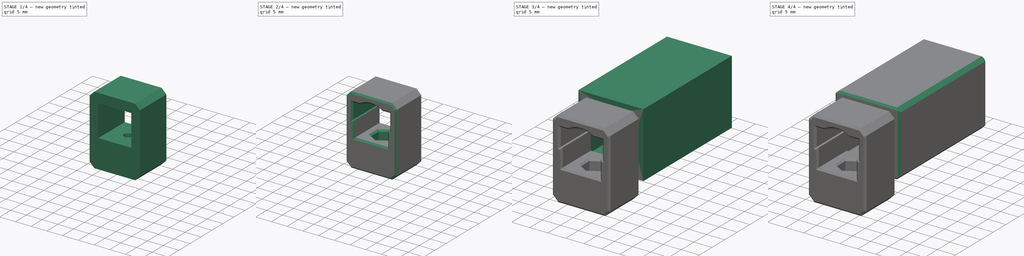
[diagram: build sequence overview — one tinted view per stage of 4, left to right]
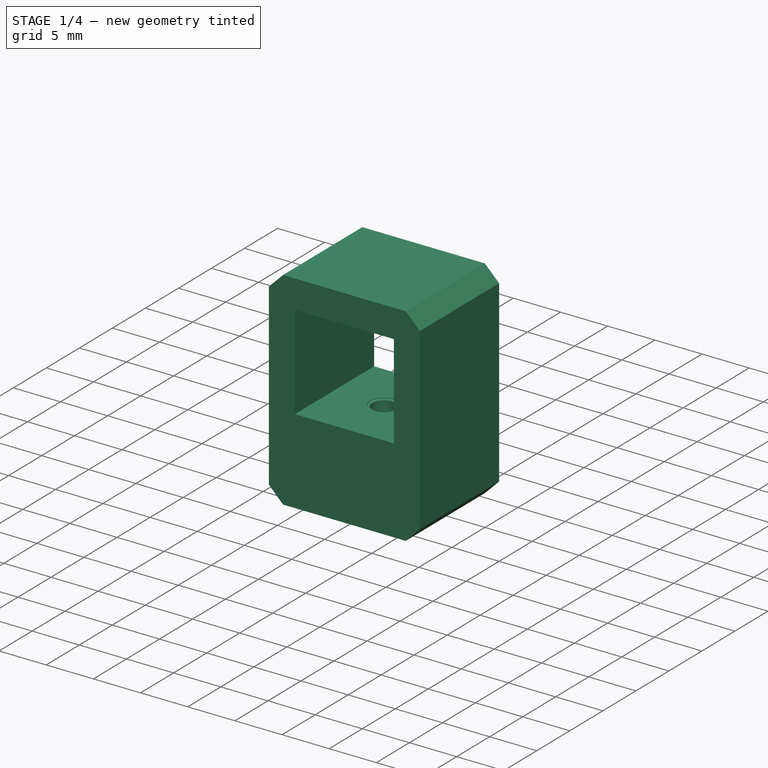
[diagram: stage 1 of 4 — iso view after this stage's code; geometry added in this stage tinted green]
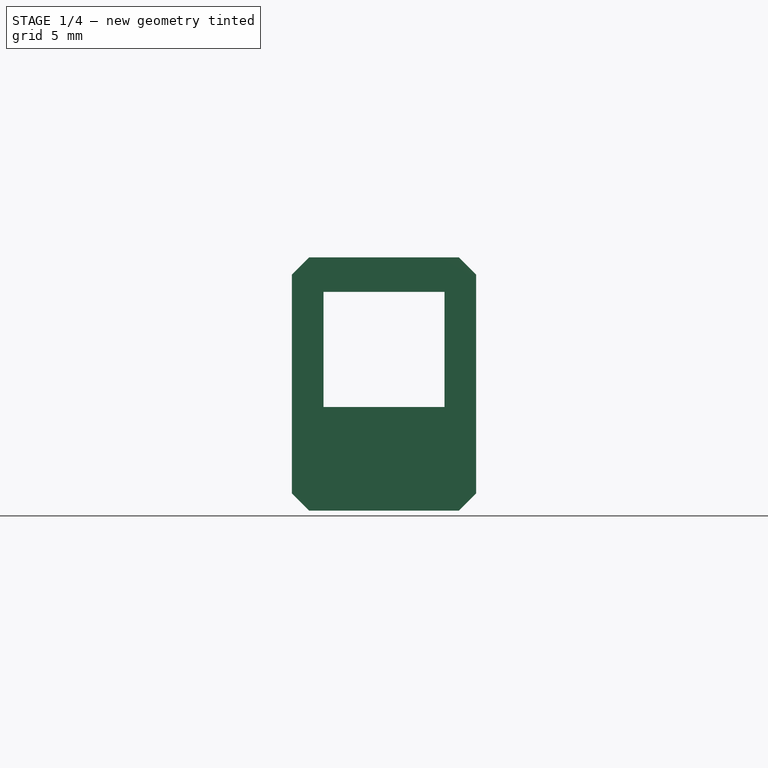
[diagram: stage 1 of 4 — front view after this stage's code; geometry added in this stage tinted green]
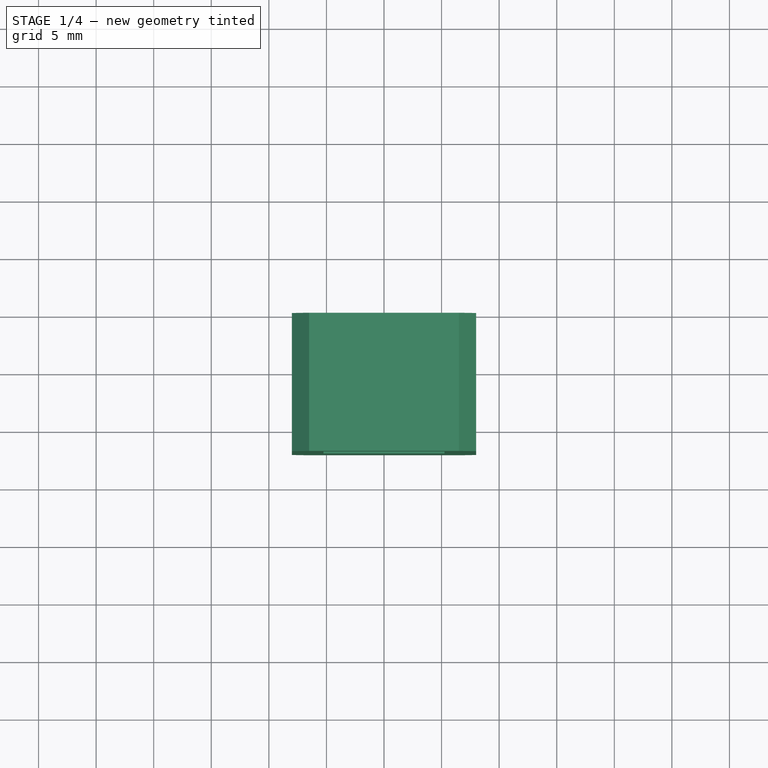
[diagram: stage 1 of 4 — top view after this stage's code; geometry added in this stage tinted green]
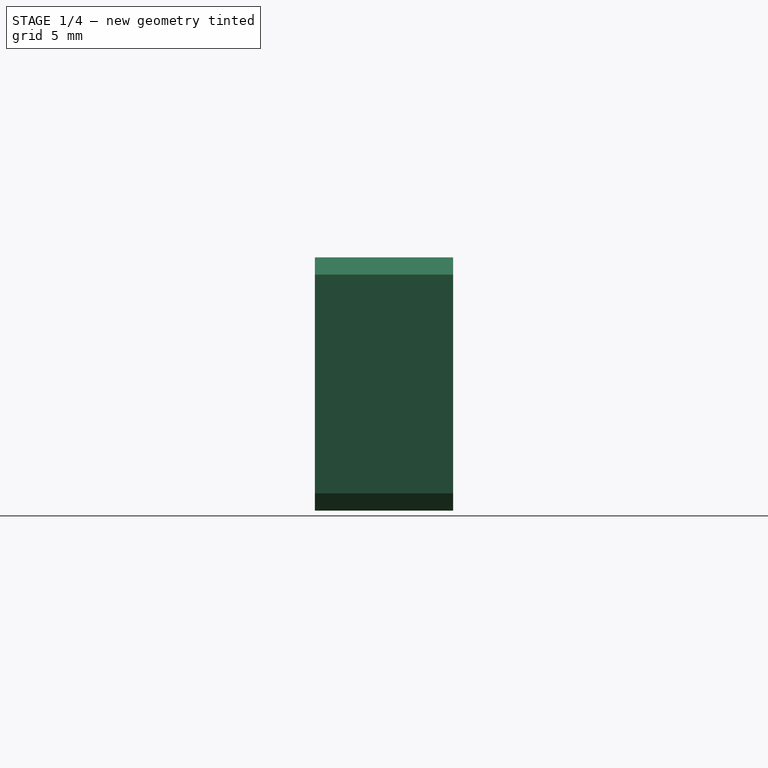
[diagram: stage 1 of 4 — right view after this stage's code; geometry added in this stage tinted green]
FCSTD DOCUMENT  (FreeCAD 1.0R39319 (Git))
Label: stopper
License: CERN Open Hardware Licence permissive
LicenseURL: https://cern-ohl.web.cern.ch/
objects: Sketcher::SketchObject×7, PartDesign::Pocket×4, PartDesign::Chamfer×4, PartDesign::Pad×3, PartDesign::Body×2, Part::FeaturePython×1, PartDesign::SubShapeBinder×1
note: 51 computed .brp shape members not serialized (recipe doc carries the construction recipe); baked Part::Feature solids carry a one-line shape summary decoded from their .brp

FEATURE [Sketcher::SketchObject] Sketch
  ArcFitTolerance = 1e-06
  AttachmentSupport = -> [XZ_Plane]
  FullyConstrained = true
  MakeInternals = false
  MapMode = 5
  Placement = pos=(0,0,0) rot=(1,0,0;1.5708rad)
  sketch-geometry (21):
    g0: LineSegment StartX=-5.25 StartY=-5 StartZ=0 EndX=5.25 EndY=-5 EndZ=0
    g1: LineSegment StartX=5.25 StartY=-5 StartZ=0 EndX=5.25 EndY=5 EndZ=0
    g2: LineSegment StartX=5.25 StartY=5 StartZ=0 EndX=-5.25 EndY=5 EndZ=0
    g3: LineSegment StartX=-5.25 StartY=5 StartZ=0 EndX=-5.25 EndY=-5 EndZ=0
    g4: GeomPoint [constr] X=0 Y=0 Z=0
    g5: LineSegment StartX=-8 StartY=6.5 StartZ=0 EndX=-8 EndY=-12.5 EndZ=0
    g6: LineSegment StartX=-6.5 StartY=-14 StartZ=0 EndX=6.5 EndY=-14 EndZ=0
    g7: LineSegment StartX=8 StartY=-12.5 StartZ=0 EndX=8 EndY=6.5 EndZ=0
    g8: LineSegment StartX=6.5 StartY=8 StartZ=0 EndX=-6.5 EndY=8 EndZ=0
    g9: ArcOfCircle [constr] CenterX=6.5 CenterY=6.5 CenterZ=0 NormalX=0 NormalY=0 NormalZ=1 AngleXU=0 Radius=1.5 StartAngle=1e-16 EndAngle=1.5708
    g10: GeomPoint [constr] X=8 Y=8 Z=0
    g11: ArcOfCircle [constr] CenterX=-6.5 CenterY=6.5 CenterZ=0 NormalX=0 NormalY=0 NormalZ=1 AngleXU=0 Radius=1.5 StartAngle=1.5708 EndAngle=3.14159
    g12: GeomPoint [constr] X=-8 Y=8 Z=0
    g13: ArcOfCircle [constr] CenterX=-6.5 CenterY=-12.5 CenterZ=0 NormalX=0 NormalY=0 NormalZ=1 AngleXU=0 Radius=1.5 StartAngle=3.14159 EndAngle=4.71239
    g14: GeomPoint [constr] X=-8 Y=-14 Z=0
    g15: ArcOfCircle [constr] CenterX=6.5 CenterY=-12.5 CenterZ=0 NormalX=0 NormalY=0 NormalZ=1 AngleXU=0 Radius=1.5 StartAngle=4.71239 EndAngle=6.28319
    g16: GeomPoint [constr] X=8 Y=-14 Z=0
    g17: LineSegment StartX=-6.5 StartY=8 StartZ=0 EndX=-8 EndY=6.5 EndZ=0
    g18: LineSegment StartX=6.5 StartY=8 StartZ=0 EndX=8 EndY=6.5 EndZ=0
    g19: LineSegment StartX=8 StartY=-12.5 StartZ=0 EndX=6.5 EndY=-14 EndZ=0
    g20: LineSegment StartX=-8 StartY=-12.5 StartZ=0 EndX=-6.5 EndY=-14 EndZ=0
  constraints (47):
    c: Coincident(g0,g1)
    c: Coincident(g1,g2)
    c: Coincident(g2,g3)
    c: Coincident(g3,g0)
    c: Horizontal(g0)
    c: Horizontal(g2)
    c: Vertical(g1)
    c: Vertical(g3)
    c: Symmetric(g2,g0,g4)
    c: Distance(g1,g3) = 10.5
    c: Distance(g0,g2) = 10
    c: Coincident(g4,g-1)
    c: Vertical(g5)
    c: Vertical(g7)
    c: Horizontal(g6)
    c: Distance(g12,g10) = 16
    c: Distance(g14,g12) = 22
    c: Symmetric(g12,g10,g-2)
    c: Distance(g2,g8) = 3
    c: PointOnObject(g10,g8)
    c: PointOnObject(g10,g7)
    c: Tangent(g8,g9) = -1.5708
    c: Tangent(g7,g9) = -1.5708
    c: PointOnObject(g12,g8)
    c: PointOnObject(g12,g5)
    c: Tangent(g8,g11) = -1.5708
    c: Tangent(g5,g11) = -1.5708
    c: PointOnObject(g14,g6)
    c: PointOnObject(g14,g5)
    c: Tangent(g6,g13) = -1.5708
    c: Tangent(g5,g13) = -1.5708
    c: PointOnObject(g16,g6)
    c: PointOnObject(g16,g7)
    c: Tangent(g6,g15) = -1.5708
    c: Tangent(g7,g15) = -1.5708
    c: Equal(g15,g13)
    c: Equal(g13,g11)
    c: Equal(g11,g9)
    c: Radius(g11) = 1.5
    c: Coincident(g17,g8)
    c: Coincident(g17,g5)
    c: Coincident(g18,g8)
    c: Coincident(g18,g7)
    c: Coincident(g19,g7)
    c: Coincident(g19,g6)
    c: Coincident(g20,g5)
    c: Coincident(g20,g6)
FEATURE [PartDesign::Pad] Pad
  Direction = (0,-1,2e-16)
  Length = 12
  Length2 = 10
  Placement = pos=(0,0,0) rot=(1,0,0;1.5708rad)
  Profile = -> Sketch
  ReferenceAxis = -> Sketch [N_Axis]
  Refine = true
  Suppressed = false
  Type = 0
FEATURE [Sketcher::SketchObject] Sketch001
  ArcFitTolerance = 1e-06
  AttachmentSupport = -> [Pad]
  ExternalGeometry = -> [Pad]
  FullyConstrained = true
  MakeInternals = false
  MapMode = 5
  Placement = pos=(0,-3.1e-15,-14) rot=(1,0,0;3.14159rad)
  sketch-geometry (2):
    g0: LineSegment [constr] StartX=-8 StartY=6 StartZ=0 EndX=8 EndY=6 EndZ=0
    g1: Circle CenterX=0 CenterY=6 CenterZ=0 NormalX=0 NormalY=0 NormalZ=1 AngleXU=0 Radius=1.5
  constraints (4):
    c: Symmetric(g-3,g-3,g0)
    c: Symmetric(g-4,g-4,g0)
    c: Diameter(g1) = 3
    c: Symmetric(g0,g0,g1)
FEATURE [PartDesign::Pocket] Pocket
  BaseFeature = -> Pad
  Direction = (0,0,1)
  Length = 0
  Length2 = 5
  Placement = pos=(0,0,0) rot=(1,0,0;1.5708rad)
  Profile = -> Sketch001
  ReferenceAxis = -> Sketch001 [N_Axis]
  Refine = true
  Suppressed = false
  Type = 3
  UpToFace = -> Pad [Face9]
FEATURE [Part::FeaturePython] Nut  label="M3-Nut"  # WARN: FeaturePython — macro-defined, semantics opaque (R4)
  Diameter = 4
  Invert = false
  LeftHanded = false
  MatchOuter = false
  OffsetAngle = 0
  Placement = pos=(0,-6,-7.4) rot=(0,0,1;0.523599rad)
  Thread = false
  Type = 31
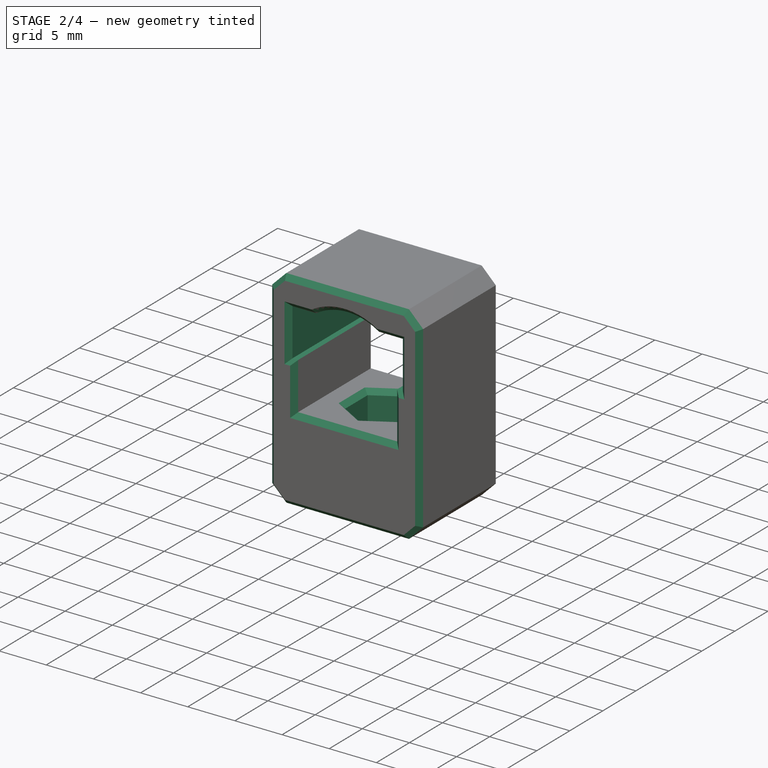
[diagram: stage 2 of 4 — iso view after this stage's code; geometry added in this stage tinted green]
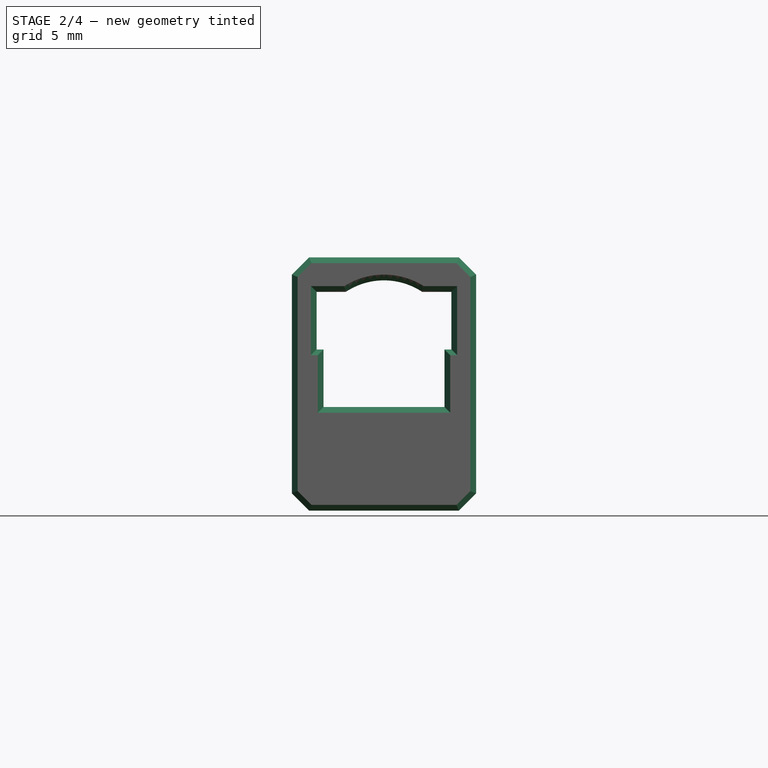
[diagram: stage 2 of 4 — front view after this stage's code; geometry added in this stage tinted green]
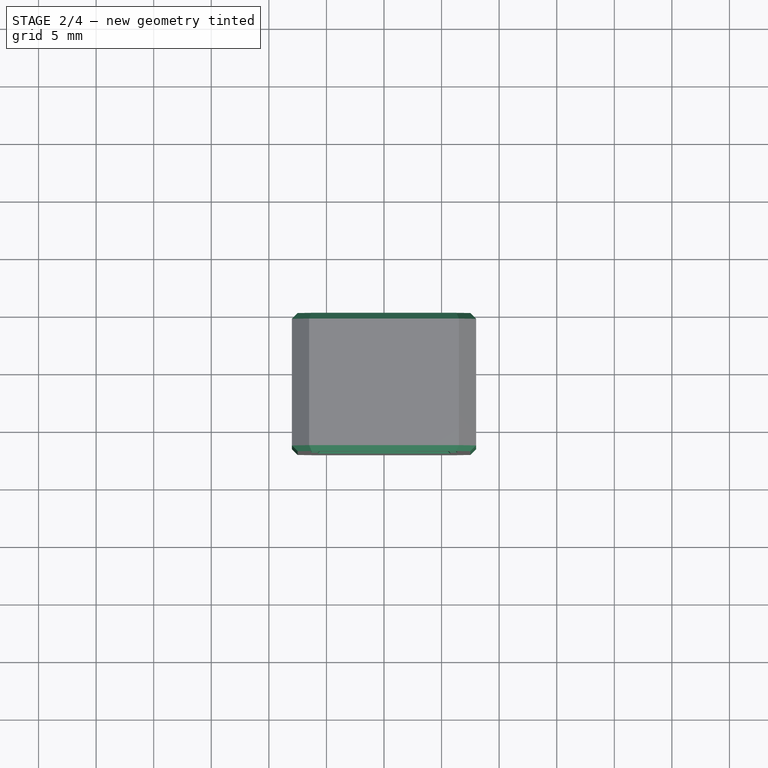
[diagram: stage 2 of 4 — top view after this stage's code; geometry added in this stage tinted green]
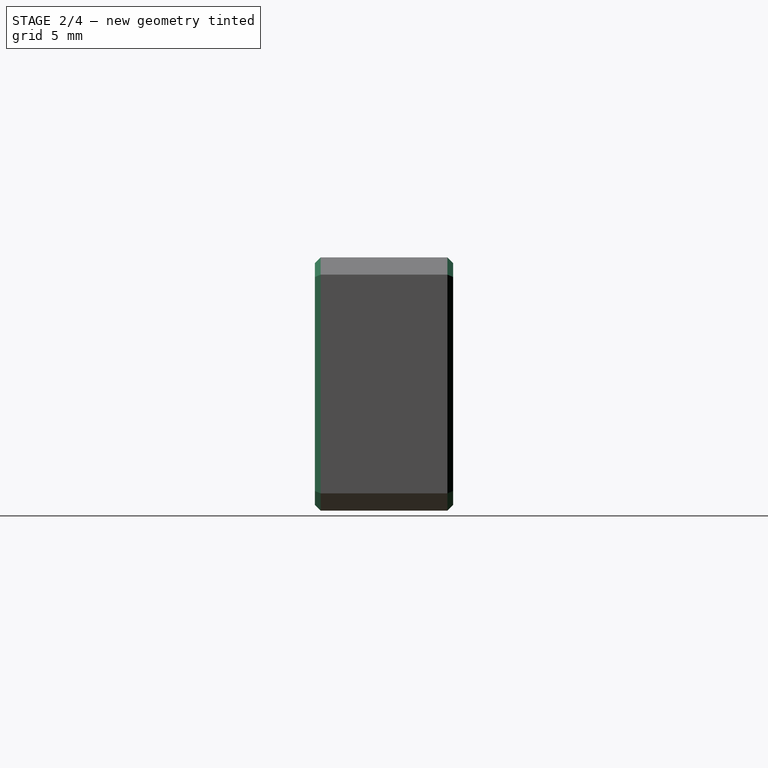
[diagram: stage 2 of 4 — right view after this stage's code; geometry added in this stage tinted green]
FEATURE [PartDesign::SubShapeBinder] Binder
  BindCopyOnChange = 0
  BindMode = 0
  ClaimChildren = false
  Context = -> Body [Binder.]
  Fuse = false
  MakeFace = true
  OffsetFill = false
  OffsetIntersection = false
  OffsetJoinType = 0
  OffsetOpenResult = false
  PartialLoad = false
  Refine = true
  Relative = true
  Support = -> [Nut]
  _Version = 2
FEATURE [Sketcher::SketchObject] Sketch002
  ArcFitTolerance = 1e-06
  AttachmentSupport = -> [Pocket]
  ExternalGeometry = -> [Binder]
  FullyConstrained = true
  MakeInternals = false
  MapMode = 5
  Placement = pos=(0,-1.1e-15,-5) rot=(0,0,1;3.14159rad)
  sketch-geometry (7):
    g0: LineSegment StartX=-2.92321 StartY=7.68771 StartZ=0 EndX=-2.92321 EndY=4.31229 EndZ=0
    g1: LineSegment StartX=-2.92321 StartY=4.31229 StartZ=0 EndX=1.3e-15 EndY=2.62457 EndZ=0
    g2: LineSegment StartX=1.2e-15 StartY=2.62457 StartZ=0 EndX=2.92321 EndY=4.31229 EndZ=0
    g3: LineSegment StartX=2.92321 StartY=4.31229 StartZ=0 EndX=2.92321 EndY=7.68771 EndZ=0
    g4: LineSegment StartX=2.92321 StartY=7.68771 StartZ=0 EndX=-1.3e-15 EndY=9.37543 EndZ=0
    g5: LineSegment StartX=-1.3e-15 StartY=9.37543 StartZ=0 EndX=-2.92321 EndY=7.68771 EndZ=0
    g6: Circle [constr] CenterX=0 CenterY=6 CenterZ=0 NormalX=0 NormalY=0 NormalZ=1 AngleXU=0 Radius=3.37543
  constraints (16):
    c: Coincident(g0,g1)
    c: Coincident(g1,g2)
    c: Coincident(g2,g3)
    c: Coincident(g3,g4)
    c: Coincident(g4,g5)
    c: Coincident(g5,g0)
    c: Equal(g0, g1-g5) x5
    c: PointOnObject(g0,g6)
    c: PointOnObject(g1,g6)
    c: PointOnObject(g2,g6)
    c: PointOnObject(g3,g6)
    c: PointOnObject(g4,g6)
    c: PointOnObject(g5,g6)
    c: Coincident(g6,g-3)
    c: Parallel(g-4,g5)
    c: Distance(g-4,g0) = 0.2
FEATURE [PartDesign::Pocket] Pocket001
  BaseFeature = -> Pocket
  Direction = (0,0,-1)
  Length = 4
  Length2 = 5
  Placement = pos=(0,0,0) rot=(1,0,0;1.5708rad)
  Profile = -> Sketch002
  ReferenceAxis = -> Sketch002 [N_Axis]
  Refine = true
  Suppressed = false
  Type = 0
FEATURE [PartDesign::Body] Body001  label="protector"
  AllowCompound = false
  Group = -> [Sketch003,Pad001,Sketch004,Pocket002,Sketch005,Pad002,Chamfer001,Chamfer002,Chamfer003]
  Origin = -> Origin001
  Tip = -> Chamfer003
FEATURE [Sketcher::SketchObject] Sketch006
  ArcFitTolerance = 1e-06
  AttachmentSupport = -> [Pocket001]
  ExternalGeometry = -> [Pocket001]
  FullyConstrained = true
  MakeInternals = false
  MapMode = 5
  Placement = pos=(0,-12,0) rot=(1,0,0;1.5708rad)
  sketch-geometry (8):
    g0: LineSegment StartX=5.85 StartY=0 StartZ=0 EndX=-5.85 EndY=0 EndZ=0
    g1: LineSegment StartX=-5.85 StartY=0 StartZ=0 EndX=-5.85 EndY=5 EndZ=0
    g2: LineSegment StartX=-5.85 StartY=5 StartZ=0 EndX=-5.25 EndY=5 EndZ=0
    g3: LineSegment StartX=-5.25 StartY=5 StartZ=0 EndX=-3.31662 EndY=5 EndZ=0
    g4: ArcOfCircle CenterX=0 CenterY=0 CenterZ=0 NormalX=0 NormalY=0 NormalZ=1 AngleXU=0 Radius=6 StartAngle=0.985111 EndAngle=2.15648
    g5: LineSegment StartX=3.31662 StartY=5 StartZ=0 EndX=5.25 EndY=5 EndZ=0
    g6: LineSegment StartX=5.25 StartY=5 StartZ=0 EndX=5.85 EndY=5 EndZ=0
    g7: LineSegment StartX=5.85 StartY=5 StartZ=0 EndX=5.85 EndY=0 EndZ=0
  constraints (23):
    c: PointOnObject(g0,g-1)
    c: PointOnObject(g0,g-1)
    c: Coincident(g0,g1)
    c: Vertical(g1)
    c: Coincident(g1,g2)
    c: Coincident(g2,g-3)
    c: Coincident(g2,g3)
    c: Horizontal(g3)
    c: Coincident(g4,g5)
    c: Coincident(g5,g-4)
    c: Horizontal(g5)
    c: Coincident(g5,g6)
    c: Horizontal(g6)
    c: Coincident(g6,g7)
    c: Coincident(g7,g0)
    c: Vertical(g7)
    c: Horizontal(g2)
    c: Equal(g2,g6)
    c: PointOnObject(g4,g-2)
    c: Coincident(g3,g4)
    c: Distance(g2,g2) = 0.6
    c: Radius(g4) = 6
    c: PointOnObject(g4,g0)
FEATURE [PartDesign::Pocket] Pocket003
  BaseFeature = -> Pocket001
  Direction = (0,1,-2e-16)
  Length = 5
  Length2 = 5
  Placement = pos=(0,0,0) rot=(1,0,0;1.5708rad)
  Profile = -> Sketch006
  ReferenceAxis = -> Sketch006 [N_Axis]
  Refine = true
  Suppressed = false
  Type = 1
FEATURE [PartDesign::Chamfer] Chamfer
  Angle = 45
  Base = -> Pocket003 [Face5,Face4,Edge58,Edge57,Edge56,Edge61,Edge60,Edge59]
  BaseFeature = -> Pocket003
  ChamferType = 0
  FlipDirection = false
  Placement = pos=(0,0,0) rot=(1,0,0;1.5708rad)
  Refine = true
  Size = 0.5
  Size2 = 1
  SupportTransform = false
  Suppressed = false
  UseAllEdges = false
FEATURE [PartDesign::Body] Body
  AllowCompound = false
  Group = -> [Sketch,Pad,Sketch001,Pocket,Binder,Sketch002,Pocket001,Sketch006,Pocket003,Chamfer]
  Origin = -> Origin
  Tip = -> Chamfer
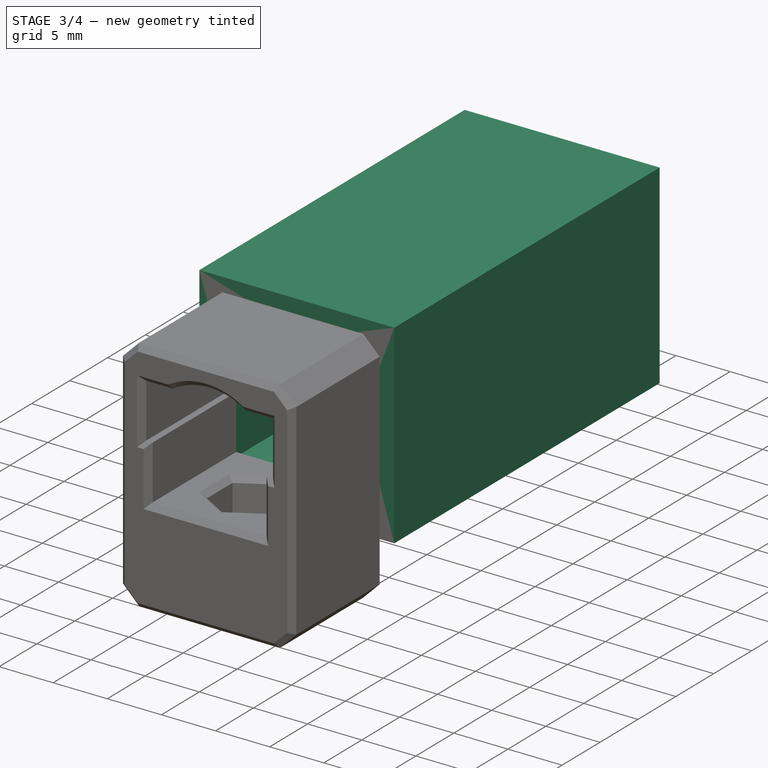
[diagram: stage 3 of 4 — iso view after this stage's code; geometry added in this stage tinted green]
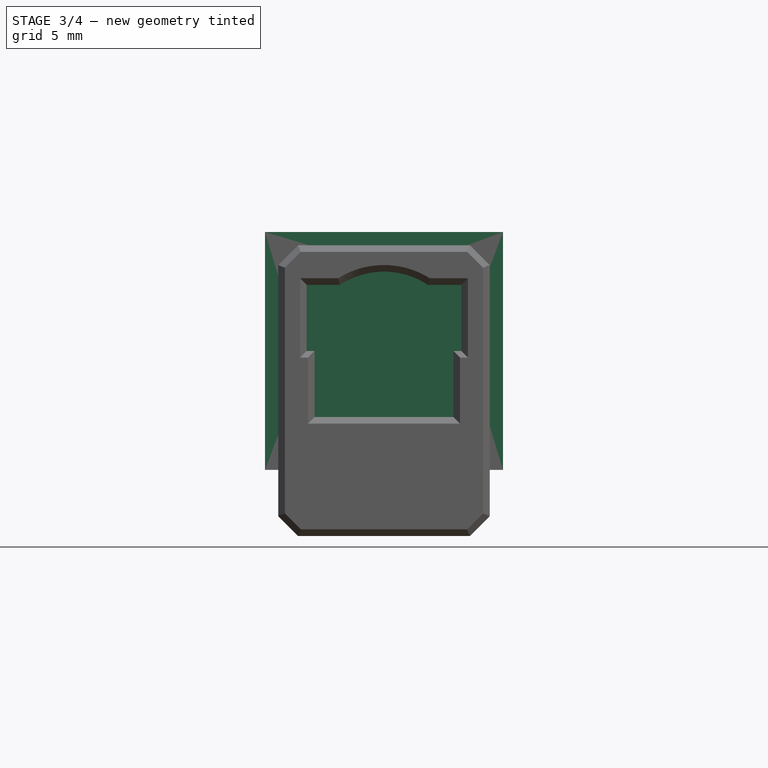
[diagram: stage 3 of 4 — front view after this stage's code; geometry added in this stage tinted green]
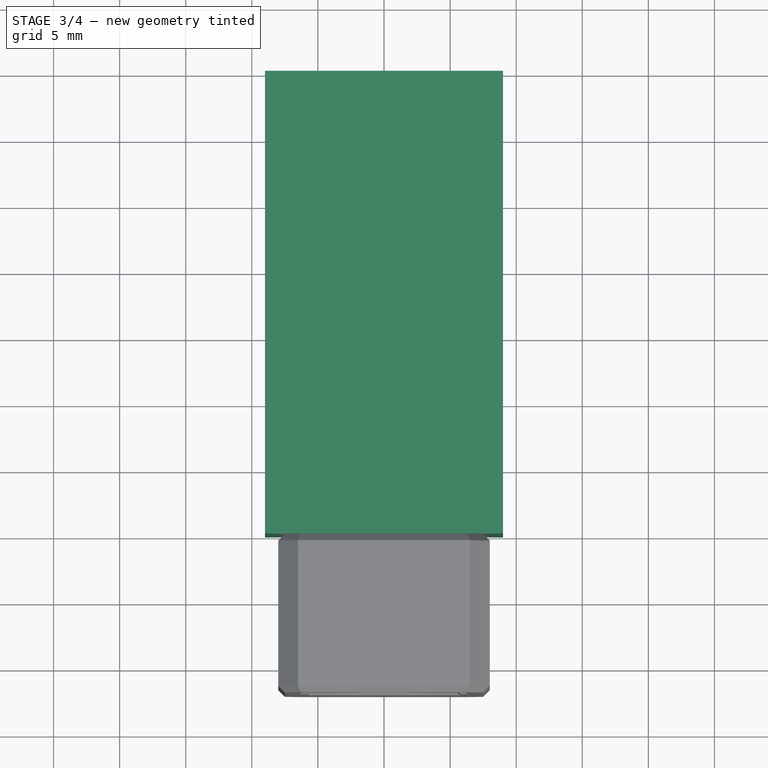
[diagram: stage 3 of 4 — top view after this stage's code; geometry added in this stage tinted green]
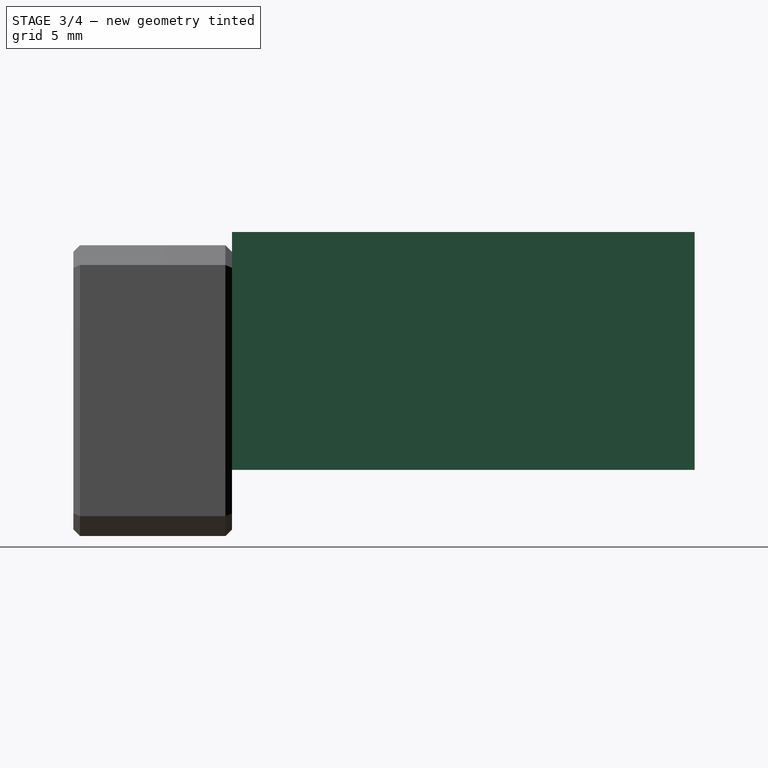
[diagram: stage 3 of 4 — right view after this stage's code; geometry added in this stage tinted green]
FEATURE [Sketcher::SketchObject] Sketch003
  ArcFitTolerance = 1e-06
  AttachmentSupport = -> [XZ_Plane001]
  FullyConstrained = true
  MakeInternals = false
  MapMode = 5
  Placement = pos=(0,0,0) rot=(1,0,0;1.5708rad)
  sketch-geometry (30):
    g0: LineSegment StartX=-6 StartY=-6 StartZ=0 EndX=-1 EndY=-6 EndZ=0
    g1: LineSegment StartX=6 StartY=-6 StartZ=0 EndX=6 EndY=-1 EndZ=0
    g2: LineSegment StartX=6 StartY=6 StartZ=0 EndX=1 EndY=6 EndZ=0
    g3: LineSegment StartX=-6 StartY=6 StartZ=0 EndX=-6 EndY=1 EndZ=0
    g4: GeomPoint [constr] X=0 Y=0 Z=0
    g5: LineSegment StartX=-9 StartY=-9 StartZ=0 EndX=9 EndY=-9 EndZ=0
    g6: LineSegment StartX=9 StartY=-9 StartZ=0 EndX=9 EndY=9 EndZ=0
    g7: LineSegment StartX=9 StartY=9 StartZ=0 EndX=-9 EndY=9 EndZ=0
    g8: LineSegment StartX=-9 StartY=9 StartZ=0 EndX=-9 EndY=-9 EndZ=0
    g9: GeomPoint [constr] X=0 Y=0 Z=0
    g10: LineSegment StartX=-6 StartY=-1 StartZ=0 EndX=-5 EndY=-1 EndZ=0
    g11: LineSegment StartX=-5 StartY=-1 StartZ=0 EndX=-5 EndY=1 EndZ=0
    g12: LineSegment StartX=-5 StartY=1 StartZ=0 EndX=-6 EndY=1 EndZ=0
    g13: GeomPoint [constr] X=-6 Y=-3e-16 Z=0
    g14: LineSegment StartX=-1 StartY=6 StartZ=0 EndX=-1 EndY=5 EndZ=0
    g15: LineSegment StartX=-1 StartY=5 StartZ=0 EndX=1 EndY=5 EndZ=0
    g16: LineSegment StartX=1 StartY=5 StartZ=0 EndX=1 EndY=6 EndZ=0
    g17: GeomPoint [constr] X=7e-16 Y=6 Z=0
    g18: LineSegment StartX=6 StartY=1 StartZ=0 EndX=5 EndY=1 EndZ=0
    g19: LineSegment StartX=5 StartY=1 StartZ=0 EndX=5 EndY=-1 EndZ=0
    g20: LineSegment StartX=5 StartY=-1 StartZ=0 EndX=6 EndY=-1 EndZ=0
    g21: GeomPoint [constr] X=6 Y=-1e-16 Z=0
    g22: LineSegment StartX=1 StartY=-6 StartZ=0 EndX=1 EndY=-5 EndZ=0
    g23: LineSegment StartX=1 StartY=-5 StartZ=0 EndX=-1 EndY=-5 EndZ=0
    g24: LineSegment StartX=-1 StartY=-5 StartZ=0 EndX=-1 EndY=-6 EndZ=0
    g25: GeomPoint [constr] X=-3e-16 Y=-6 Z=0
    g26: LineSegment StartX=-1 StartY=6 StartZ=0 EndX=-6 EndY=6 EndZ=0
    g27: LineSegment StartX=-6 StartY=-1 StartZ=0 EndX=-6 EndY=-6 EndZ=0
    g28: LineSegment StartX=1 StartY=-6 StartZ=0 EndX=6 EndY=-6 EndZ=0
    g29: LineSegment StartX=6 StartY=1 StartZ=0 EndX=6 EndY=6 EndZ=0
  constraints (75):
    c: Coincident(g28,g1)
    c: Coincident(g29,g2)
    c: Coincident(g26,g3)
    c: Coincident(g27,g0)
    c: Horizontal(g0)
    c: Horizontal(g2)
    c: Vertical(g1)
    c: Vertical(g3)
    c: Symmetric(g2,g0,g4)
    c: Distance(g1,g27) = 12
    c: Coincident(g4,g-1)
    c: Coincident(g5,g6)
    c: Coincident(g6,g7)
    c: Coincident(g7,g8)
    c: Coincident(g8,g5)
    c: Horizontal(g5)
    c: Horizontal(g7)
    c: Vertical(g6)
    c: Vertical(g8)
    c: Symmetric(g7,g5,g9)
    c: Distance(g6,g8) = 18
    c: Coincident(g9,g4)
    c: Equal(g5,g8)
    c: Coincident(g10,g11)
    c: Coincident(g11,g12)
    c: Horizontal(g10)
    c: Horizontal(g12)
    c: Vertical(g11)
    c: Symmetric(g3,g27,g13)
    c: Coincident(g14,g15)
    c: Coincident(g15,g16)
    c: Vertical(g14)
    c: Vertical(g16)
    c: Horizontal(g15)
    c: Symmetric(g2,g26,g17)
    c: Coincident(g18,g19)
    c: Coincident(g19,g20)
    c: Vertical(g19)
    c: Horizontal(g18)
    c: Horizontal(g20)
    c: Symmetric(g1,g29,g21)
    c: Coincident(g22,g23)
    c: Coincident(g23,g24)
    c: Vertical(g22)
    c: Vertical(g24)
    c: Horizontal(g23)
    c: Symmetric(g0,g28,g25)
    c: Equal(g23,g19)
    c: Equal(g19,g15)
    c: Equal(g15,g11)
    c: Coincident(g14,g26)
    c: Coincident(g16,g2)
    c: PointOnObject(g10,g27)
    c: Coincident(g3,g12)
    c: PointOnObject(g27,g10)
    c: PointOnObject(g22,g28)
    c: Coincident(g0,g24)
    c: PointOnObject(g28,g22)
    c: PointOnObject(g18,g29)
    c: PointOnObject(g29,g18)
    c: Coincident(g20,g1)
    c: Equal(g24,g12)
    c: Equal(g10,g16)
    c: Equal(g14,g18)
    c: Distance(g24,g24) = 1
    c: DistanceY(g0,g3) = 12
    c: Horizontal(g26)
    c: Vertical(g27)
    c: Horizontal(g28)
    c: Vertical(g29)
    c: Symmetric(g14,g2,g-2)
    c: Symmetric(g3,g10,g-1)
    c: Symmetric(g0,g22,g-2)
    c: Symmetric(g18,g1,g-1)
    c: DistanceX(g15,g15) = 2
FEATURE [PartDesign::Pad] Pad001
  Direction = (0,-1,2e-16)
  Length = 32
  Length2 = 10
  Placement = pos=(0,0,0) rot=(1,0,0;1.5708rad)
  Profile = -> Sketch003
  ReferenceAxis = -> Sketch003 [N_Axis]
  Refine = true
  Reversed = true
  Suppressed = false
  Type = 0
FEATURE [Sketcher::SketchObject] Sketch004
  ArcFitTolerance = 1e-06
  AttachmentSupport = -> [Pad001]
  FullyConstrained = true
  MakeInternals = false
  MapMode = 5
  Placement = pos=(0,0,0) rot=(1,0,0;1.5708rad)
  sketch-geometry (5):
    g0: LineSegment StartX=6 StartY=2 StartZ=0 EndX=6 EndY=5 EndZ=0
    g1: LineSegment StartX=6 StartY=5 StartZ=0 EndX=-6 EndY=5 EndZ=0
    g2: LineSegment StartX=-6 StartY=5 StartZ=0 EndX=-6 EndY=2 EndZ=0
    g3: LineSegment StartX=-6 StartY=2 StartZ=0 EndX=6 EndY=2 EndZ=0
    g4: GeomPoint [constr] X=0 Y=3.5 Z=0
  constraints (13):
    c: Coincident(g0,g1)
    c: Coincident(g1,g2)
    c: Coincident(g2,g3)
    c: Coincident(g3,g0)
    c: Vertical(g0)
    c: Vertical(g2)
    c: Horizontal(g1)
    c: Horizontal(g3)
    c: Symmetric(g2,g0,g4)
    c: PointOnObject(g4,g-2)
    c: PointOnObject(g-3,g1)
    c: Distance(g2,g2) = 3
    c: DistanceX(g1,g1) = 12
FEATURE [PartDesign::Pocket] Pocket002
  BaseFeature = -> Pad001
  Direction = (0,1,-2e-16)
  Length = 5
  Length2 = 5
  Placement = pos=(0,0,0) rot=(1,0,0;1.5708rad)
  Profile = -> Sketch004
  ReferenceAxis = -> Sketch004 [N_Axis]
  Refine = true
  Suppressed = false
  Type = 1
FEATURE [Sketcher::SketchObject] Sketch005
  ArcFitTolerance = 1e-06
  AttachmentSupport = -> [Pad001]
  ExternalGeometry = -> [Pad001]
  FullyConstrained = true
  MakeInternals = false
  MapMode = 5
  Placement = pos=(0,32,0) rot=(-1,0,0;1.5708rad)
  sketch-geometry (4):
    g0: LineSegment StartX=-9 StartY=9 StartZ=0 EndX=-9 EndY=-9 EndZ=0
    g1: LineSegment StartX=-9 StartY=-9 StartZ=0 EndX=9 EndY=-9 EndZ=0
    g2: LineSegment StartX=9 StartY=-9 StartZ=0 EndX=9 EndY=9 EndZ=0
    g3: LineSegment StartX=9 StartY=9 StartZ=0 EndX=-9 EndY=9 EndZ=0
  constraints (10):
    c: Coincident(g0,g1)
    c: Coincident(g1,g2)
    c: Coincident(g2,g3)
    c: Coincident(g3,g0)
    c: Vertical(g0)
    c: Vertical(g2)
    c: Horizontal(g1)
    c: Horizontal(g3)
    c: Coincident(g0,g-4)
    c: Coincident(g1,g-3)
FEATURE [PartDesign::Pad] Pad002
  BaseFeature = -> Pocket002
  Direction = (0,1,2e-16)
  Length = 3
  Length2 = 10
  Placement = pos=(0,0,0) rot=(1,0,0;1.5708rad)
  Profile = -> Sketch005
  ReferenceAxis = -> Sketch005 [N_Axis]
  Refine = true
  Suppressed = false
  Type = 0
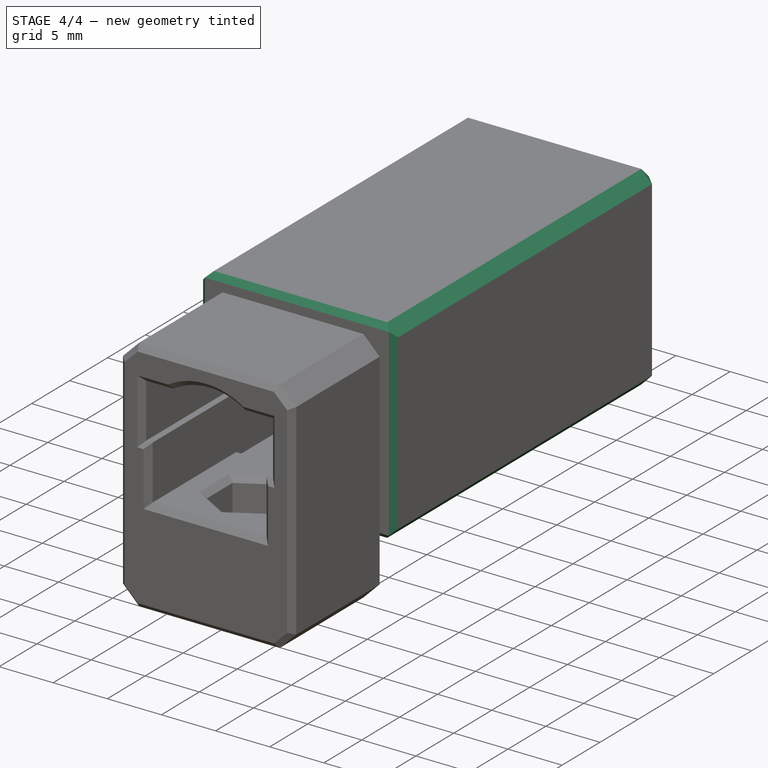
[diagram: stage 4 of 4 — iso view after this stage's code; geometry added in this stage tinted green]
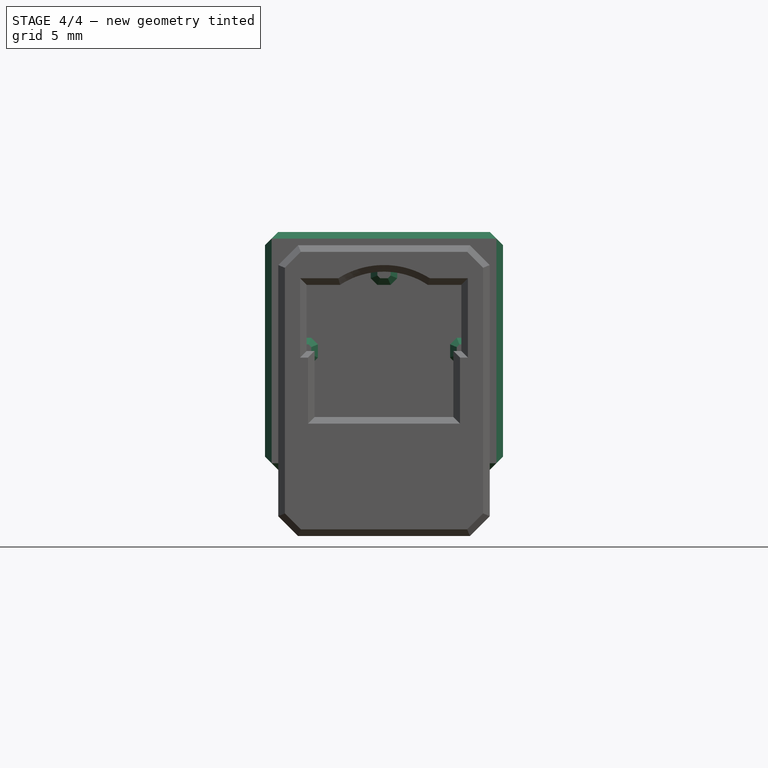
[diagram: stage 4 of 4 — front view after this stage's code; geometry added in this stage tinted green]
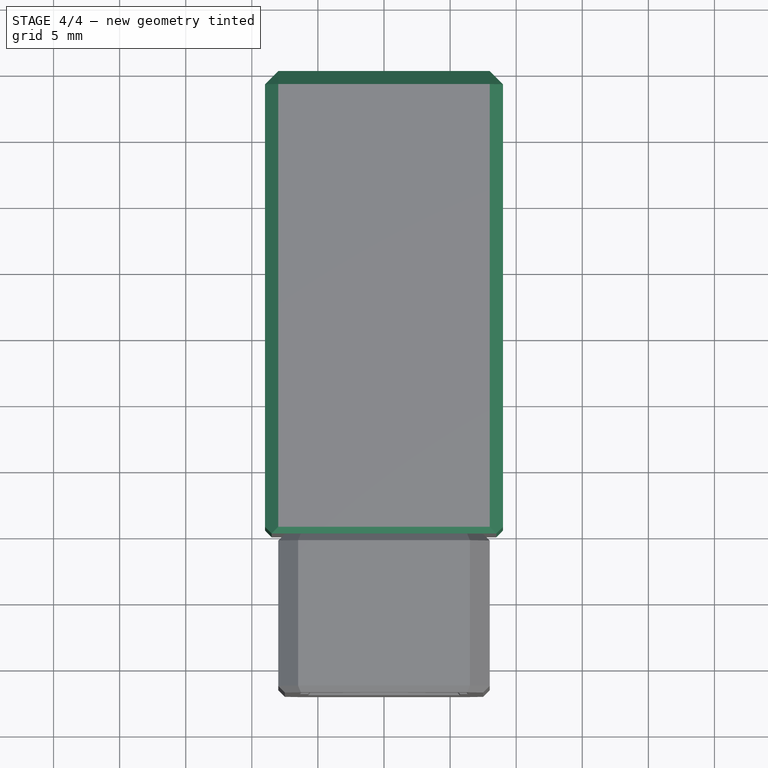
[diagram: stage 4 of 4 — top view after this stage's code; geometry added in this stage tinted green]
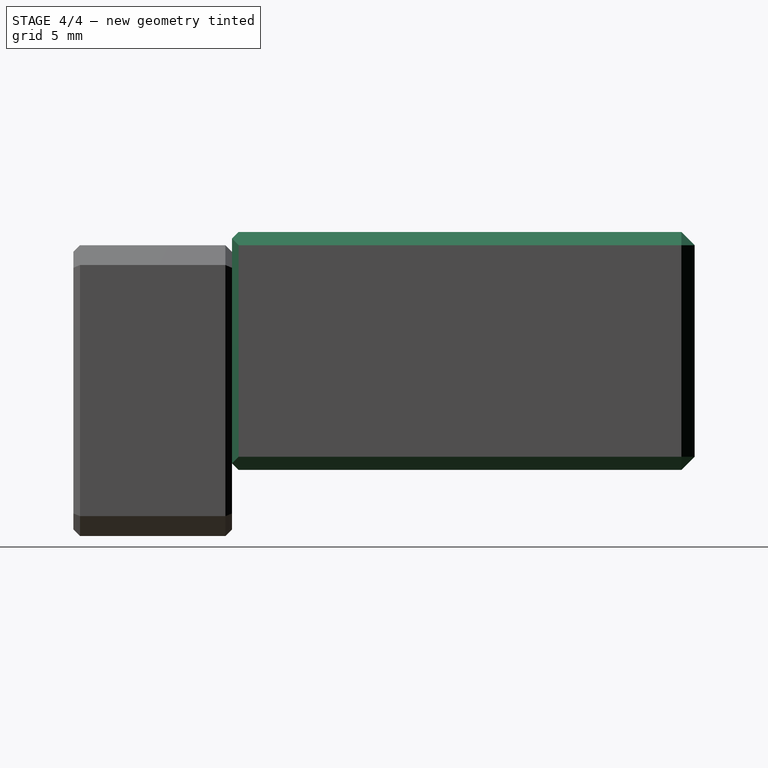
[diagram: stage 4 of 4 — right view after this stage's code; geometry added in this stage tinted green]
FEATURE [PartDesign::Chamfer] Chamfer001
  Angle = 45
  Base = -> Pad002 [Edge38,Edge36,Edge68,Edge66,Edge58,Edge56,Edge48,Edge46]
  BaseFeature = -> Pad002
  ChamferType = 0
  FlipDirection = false
  Placement = pos=(0,0,0) rot=(1,0,0;1.5708rad)
  Refine = true
  Size = 0.5
  Size2 = 1
  SupportTransform = false
  Suppressed = false
  UseAllEdges = false
FEATURE [PartDesign::Chamfer] Chamfer002
  Angle = 45
  Base = -> Chamfer001 [Face1]
  BaseFeature = -> Chamfer001
  ChamferType = 0
  FlipDirection = false
  Placement = pos=(0,0,0) rot=(1,0,0;1.5708rad)
  Refine = true
  Size = 0.5
  Size2 = 1
  SupportTransform = false
  Suppressed = false
  UseAllEdges = false
FEATURE [PartDesign::Chamfer] Chamfer003
  Angle = 45
  Base = -> Chamfer002 [Edge159,Edge155,Edge153,Edge156,Edge157,Edge160,Edge154,Edge158]
  BaseFeature = -> Chamfer002
  ChamferType = 0
  FlipDirection = false
  Placement = pos=(0,0,0) rot=(1,0,0;1.5708rad)
  Refine = true
  Size = 1
  Size2 = 1
  SupportTransform = false
  Suppressed = false
  UseAllEdges = false
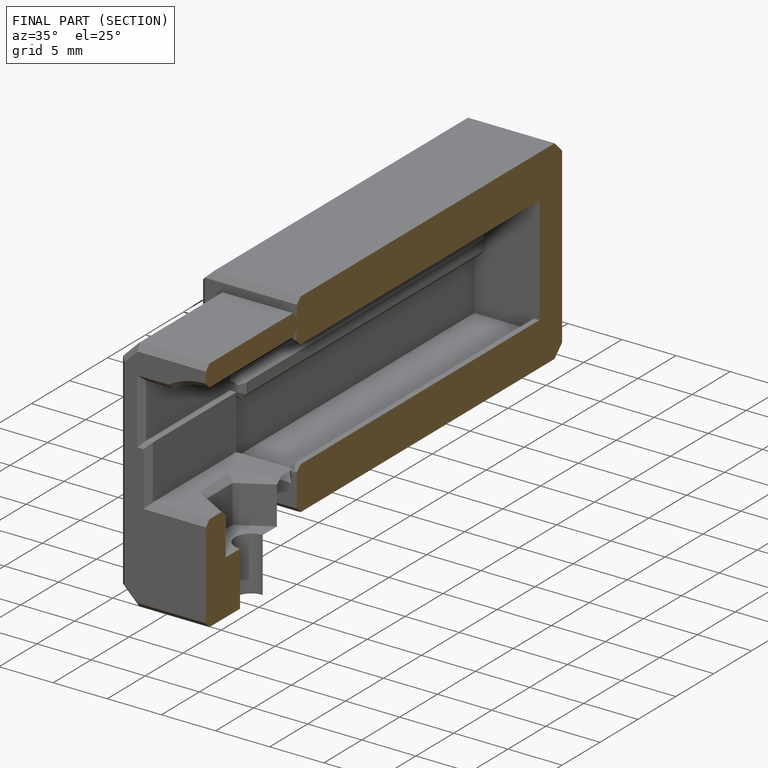
[diagram: finished part — half-section view (interior)]
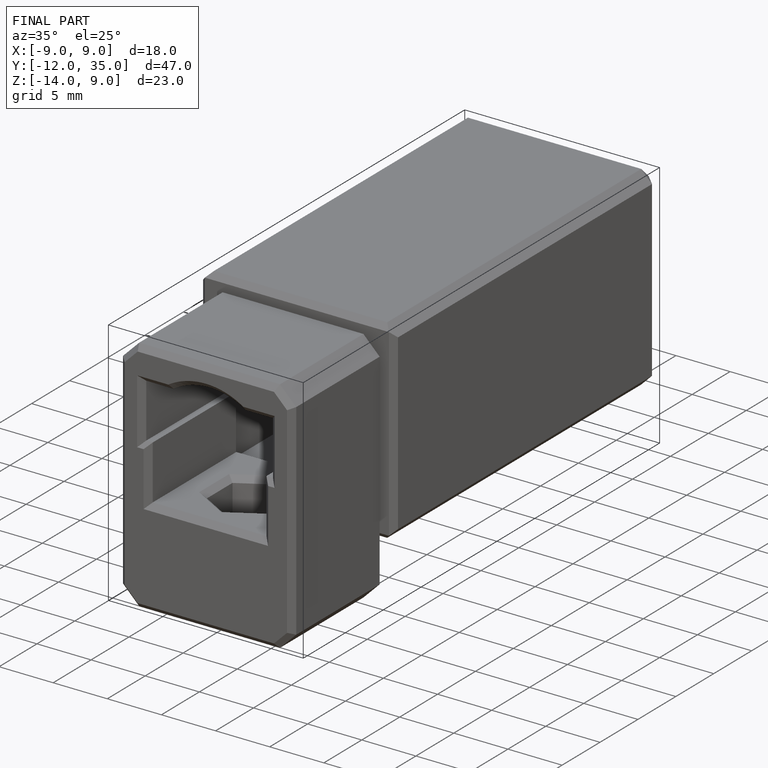
[diagram: finished part — iso view with bounding-box wireframe]
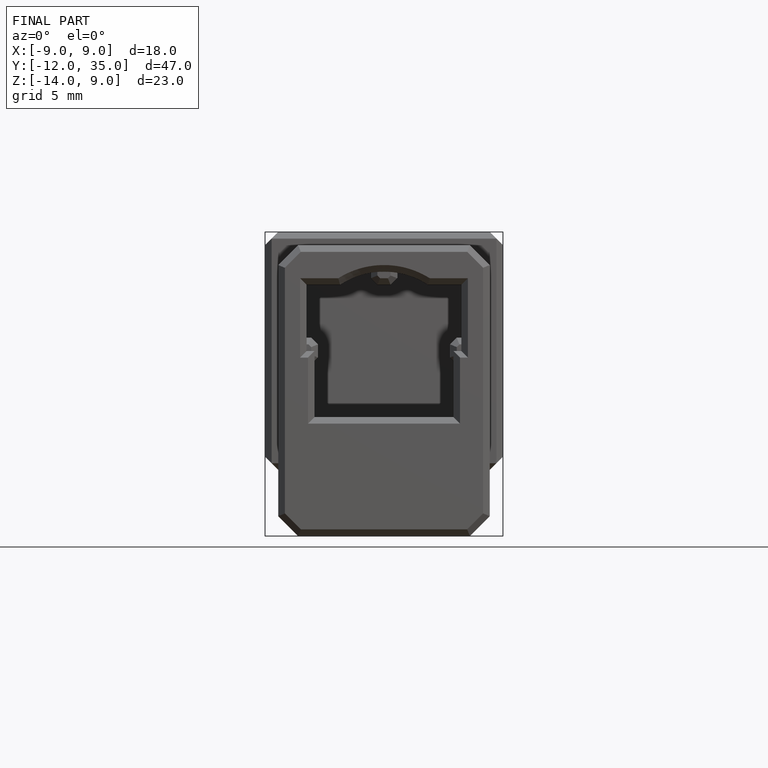
[diagram: finished part — front view with bounding-box wireframe]
